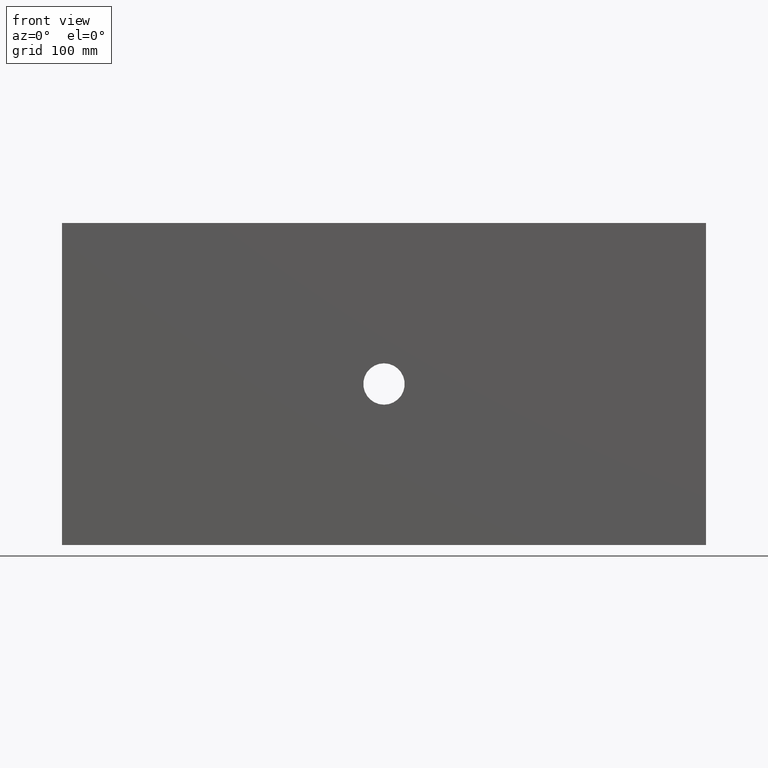
[diagram: clean part render]
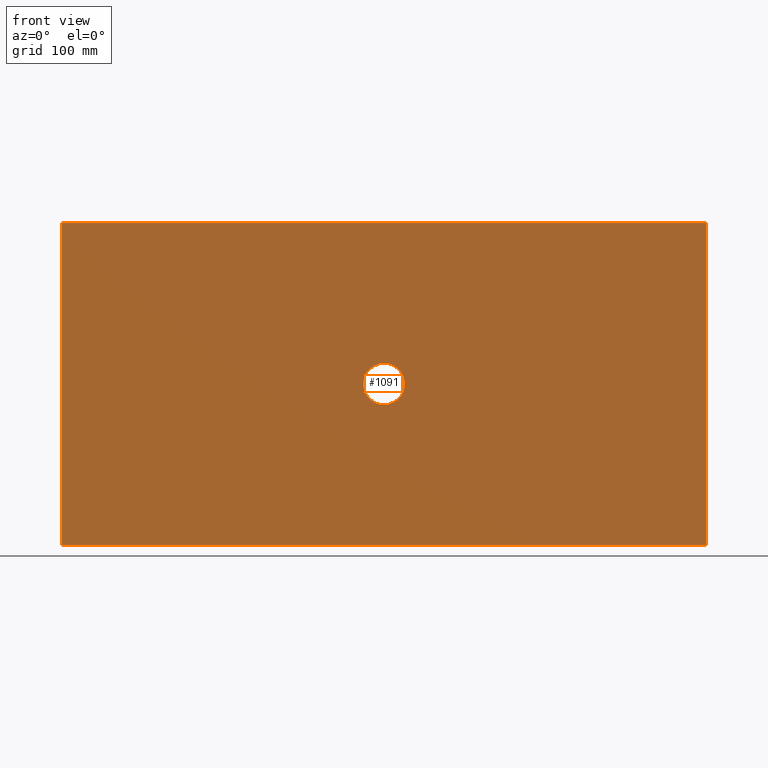
[diagram: same view with one face highlighted and labeled with its STEP entity id]
A machine part, front view. The second image highlights one B-rep face of the part: STEP entity #1091.
In plain terms, the highlighted planar face has unit normal (0, -1, 0).
Its self-contained STEP definition (entity closure, byte-faithful):
#1 = EDGE_LOOP ( 'NONE', ( #1076, #889, #1148, #343 ) ) ;
#9 = LINE ( 'NONE', #230, #308 ) ;
#31 = AXIS2_PLACEMENT_3D ( 'NONE', #289, #709, #383 ) ;
#44 = DIRECTION ( 'NONE',  ( 0.0000000000000000000, 0.0000000000000000000, -1.000000000000000000 ) ) ;
#45 = VERTEX_POINT ( 'NONE', #1189 ) ;
#55 = EDGE_CURVE ( 'NONE', #806, #937, #337, .T. ) ;
#96 = EDGE_CURVE ( 'NONE', #530, #241, #886, .T. ) ;
#106 = EDGE_CURVE ( 'NONE', #937, #530, #705, .T. ) ;
#110 = CARTESIAN_POINT ( 'NONE',  ( 700.0000000000000000, 0.0000000000000000000, -350.0000000000000000 ) ) ;
#133 = CIRCLE ( 'NONE', #1184, 22.50000000000010300 ) ;
#165 = ORIENTED_EDGE ( 'NONE', *, *, #680, .T. ) ;
#175 = EDGE_LOOP ( 'NONE', ( #165, #604 ) ) ;
#181 = VERTEX_POINT ( 'NONE', #486 ) ;
#209 = CARTESIAN_POINT ( 'NONE',  ( 0.0000000000000000000, 0.0000000000000000000, -350.0000000000000000 ) ) ;
#230 = CARTESIAN_POINT ( 'NONE',  ( 0.0000000000000000000, 0.0000000000000000000, -350.0000000000000000 ) ) ;
#241 = VERTEX_POINT ( 'NONE', #110 ) ;
#259 = DIRECTION ( 'NONE',  ( 1.000000000000000000, 0.0000000000000000000, 0.0000000000000000000 ) ) ;
#267 = CIRCLE ( 'NONE', #943, 22.50000000000010300 ) ;
#289 = CARTESIAN_POINT ( 'NONE',  ( 0.0000000000000000000, 0.0000000000000000000, -350.0000000000000000 ) ) ;
#293 = FACE_OUTER_BOUND ( 'NONE', #1, .T. ) ;
#308 = VECTOR ( 'NONE', #995, 1000.000000000000000 ) ;
#337 = LINE ( 'NONE', #1000, #621 ) ;
#339 = VECTOR ( 'NONE', #259, 1000.000000000000000 ) ;
#341 = FACE_BOUND ( 'NONE', #175, .T. ) ;
#343 = ORIENTED_EDGE ( 'NONE', *, *, #106, .F. ) ;
#383 = DIRECTION ( 'NONE',  ( 0.0000000000000000000, -0.0000000000000000000, -1.000000000000000000 ) ) ;
#384 = EDGE_CURVE ( 'NONE', #181, #45, #133, .T. ) ;
#486 = CARTESIAN_POINT ( 'NONE',  ( 350.0000000000000000, 0.0000000000000000000, -197.5000000000000900 ) ) ;
#530 = VERTEX_POINT ( 'NONE', #867 ) ;
#555 = CARTESIAN_POINT ( 'NONE',  ( 350.0000000000000000, 0.0000000000000000000, -175.0000000000000000 ) ) ;
#566 = EDGE_CURVE ( 'NONE', #241, #806, #9, .T. ) ;
#598 = CARTESIAN_POINT ( 'NONE',  ( 350.0000000000000000, 0.0000000000000000000, -175.0000000000000000 ) ) ;
#604 = ORIENTED_EDGE ( 'NONE', *, *, #384, .T. ) ;
#607 = DIRECTION ( 'NONE',  ( -0.0000000000000000000, 1.000000000000000000, -0.0000000000000000000 ) ) ;
#611 = DIRECTION ( 'NONE',  ( 0.0000000000000000000, 0.0000000000000000000, -1.000000000000000000 ) ) ;
#621 = VECTOR ( 'NONE', #1087, 1000.000000000000000 ) ;
#680 = EDGE_CURVE ( 'NONE', #45, #181, #267, .T. ) ;
#690 = CARTESIAN_POINT ( 'NONE',  ( 0.0000000000000000000, 0.0000000000000000000, 0.0000000000000000000 ) ) ;
#705 = LINE ( 'NONE', #1022, #339 ) ;
#709 = DIRECTION ( 'NONE',  ( 0.0000000000000000000, -1.000000000000000000, 0.0000000000000000000 ) ) ;
#806 = VERTEX_POINT ( 'NONE', #209 ) ;
#841 = DIRECTION ( 'NONE',  ( 0.0000000000000000000, 0.0000000000000000000, -1.000000000000000000 ) ) ;
#846 = DIRECTION ( 'NONE',  ( -0.0000000000000000000, 1.000000000000000000, -0.0000000000000000000 ) ) ;
#867 = CARTESIAN_POINT ( 'NONE',  ( 700.0000000000000000, 0.0000000000000000000, 0.0000000000000000000 ) ) ;
#882 = PLANE ( 'NONE',  #31 ) ;
#886 = LINE ( 'NONE', #1097, #1157 ) ;
#889 = ORIENTED_EDGE ( 'NONE', *, *, #566, .F. ) ;
#937 = VERTEX_POINT ( 'NONE', #690 ) ;
#943 = AXIS2_PLACEMENT_3D ( 'NONE', #598, #607, #611 ) ;
#995 = DIRECTION ( 'NONE',  ( -1.000000000000000000, -0.0000000000000000000, -0.0000000000000000000 ) ) ;
#1000 = CARTESIAN_POINT ( 'NONE',  ( 0.0000000000000000000, 0.0000000000000000000, 0.0000000000000000000 ) ) ;
#1022 = CARTESIAN_POINT ( 'NONE',  ( 0.0000000000000000000, 0.0000000000000000000, 0.0000000000000000000 ) ) ;
#1076 = ORIENTED_EDGE ( 'NONE', *, *, #55, .F. ) ;
#1087 = DIRECTION ( 'NONE',  ( -0.0000000000000000000, -0.0000000000000000000, 1.000000000000000000 ) ) ;
#1091 = ADVANCED_FACE ( 'NONE', ( #341, #293 ), #882, .T. ) ;
#1097 = CARTESIAN_POINT ( 'NONE',  ( 700.0000000000000000, 0.0000000000000000000, 0.0000000000000000000 ) ) ;
#1148 = ORIENTED_EDGE ( 'NONE', *, *, #96, .F. ) ;
#1157 = VECTOR ( 'NONE', #44, 1000.000000000000000 ) ;
#1184 = AXIS2_PLACEMENT_3D ( 'NONE', #555, #846, #841 ) ;
#1189 = CARTESIAN_POINT ( 'NONE',  ( 350.0000000000000000, 0.0000000000000000000, -152.4999999999998900 ) ) ;